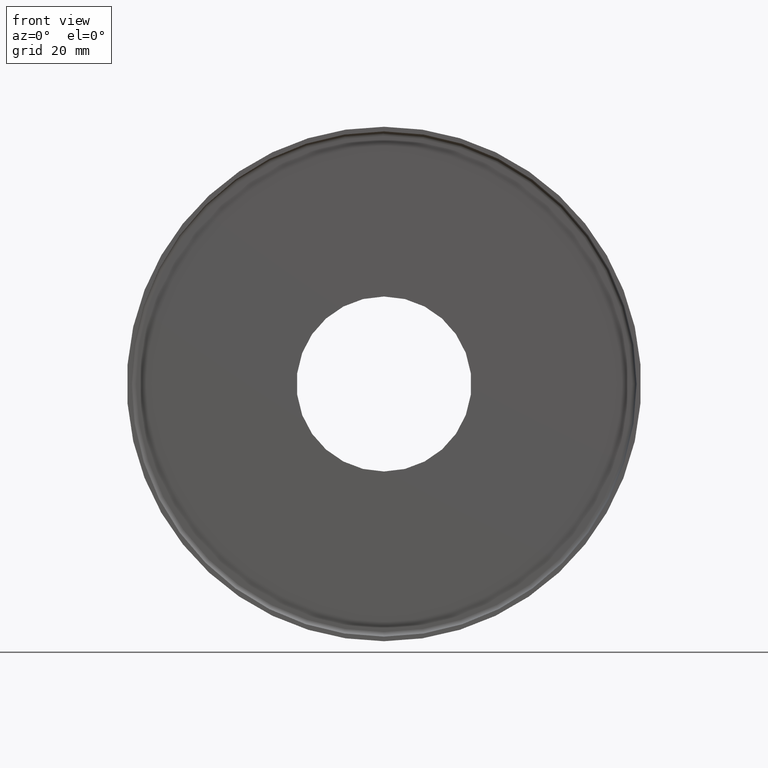
[diagram: clean part render]
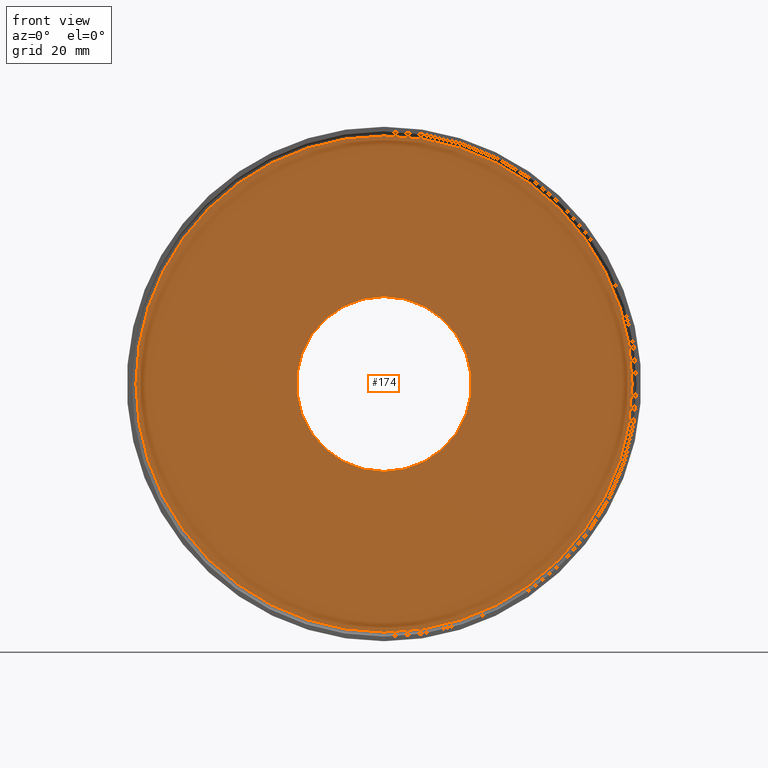
[diagram: same view with one face highlighted and labeled with its STEP entity id]
A machine part, front view. The second image highlights one B-rep face of the part: STEP entity #174.
In plain terms, the highlighted planar face has unit normal (0, 1, 0).
Its self-contained STEP definition (entity closure, byte-faithful):
#10 = DIRECTION ( 'NONE',  ( 0.0000000000000000000, 1.000000000000000000, 0.0000000000000000000 ) ) ;
#28 = CARTESIAN_POINT ( 'NONE',  ( 0.0000000000000000000, 17.39999999999999900, 0.0000000000000000000 ) ) ;
#42 = DIRECTION ( 'NONE',  ( 0.0000000000000000000, -0.0000000000000000000, 1.000000000000000000 ) ) ;
#49 = CIRCLE ( 'NONE', #271, 19.05000000000000100 ) ;
#56 = AXIS2_PLACEMENT_3D ( 'NONE', #125, #10, #42 ) ;
#58 = ORIENTED_EDGE ( 'NONE', *, *, #236, .F. ) ;
#67 = VERTEX_POINT ( 'NONE', #394 ) ;
#68 = EDGE_CURVE ( 'NONE', #224, #273, #324, .T. ) ;
#69 = CARTESIAN_POINT ( 'NONE',  ( 6.674325055353075800E-015, 17.39999999999999900, -54.00000000000000700 ) ) ;
#71 = DIRECTION ( 'NONE',  ( 0.0000000000000000000, 1.000000000000000000, 0.0000000000000000000 ) ) ;
#76 = FACE_OUTER_BOUND ( 'NONE', #298, .T. ) ;
#106 = DIRECTION ( 'NONE',  ( 0.0000000000000000000, 0.0000000000000000000, 1.000000000000000000 ) ) ;
#111 = ORIENTED_EDGE ( 'NONE', *, *, #312, .T. ) ;
#115 = AXIS2_PLACEMENT_3D ( 'NONE', #28, #242, #344 ) ;
#124 = CARTESIAN_POINT ( 'NONE',  ( 0.0000000000000000000, 17.39999999999999900, 0.0000000000000000000 ) ) ;
#125 = CARTESIAN_POINT ( 'NONE',  ( 0.0000000000000000000, 17.39999999999999900, 0.0000000000000000000 ) ) ;
#134 = ORIENTED_EDGE ( 'NONE', *, *, #193, .T. ) ;
#135 = DIRECTION ( 'NONE',  ( 0.0000000000000000000, 1.000000000000000000, 0.0000000000000000000 ) ) ;
#138 = EDGE_LOOP ( 'NONE', ( #134, #111 ) ) ;
#144 = FACE_BOUND ( 'NONE', #138, .T. ) ;
#158 = DIRECTION ( 'NONE',  ( 0.0000000000000000000, 0.0000000000000000000, 1.000000000000000000 ) ) ;
#174 = ADVANCED_FACE ( 'NONE', ( #144, #76 ), #378, .F. ) ;
#188 = DIRECTION ( 'NONE',  ( 0.0000000000000000000, 0.0000000000000000000, 1.000000000000000000 ) ) ;
#193 = EDGE_CURVE ( 'NONE', #285, #67, #49, .T. ) ;
#216 = AXIS2_PLACEMENT_3D ( 'NONE', #124, #249, #188 ) ;
#218 = ORIENTED_EDGE ( 'NONE', *, *, #68, .F. ) ;
#224 = VERTEX_POINT ( 'NONE', #296 ) ;
#236 = EDGE_CURVE ( 'NONE', #273, #224, #269, .T. ) ;
#242 = DIRECTION ( 'NONE',  ( 0.0000000000000000000, 1.000000000000000000, 0.0000000000000000000 ) ) ;
#249 = DIRECTION ( 'NONE',  ( 0.0000000000000000000, 1.000000000000000000, 0.0000000000000000000 ) ) ;
#262 = CARTESIAN_POINT ( 'NONE',  ( 0.0000000000000000000, 17.39999999999999900, 0.0000000000000000000 ) ) ;
#269 = CIRCLE ( 'NONE', #370, 54.00000000000000700 ) ;
#271 = AXIS2_PLACEMENT_3D ( 'NONE', #355, #135, #158 ) ;
#273 = VERTEX_POINT ( 'NONE', #69 ) ;
#285 = VERTEX_POINT ( 'NONE', #384 ) ;
#296 = CARTESIAN_POINT ( 'NONE',  ( 0.0000000000000000000, 17.39999999999999900, 54.00000000000000700 ) ) ;
#298 = EDGE_LOOP ( 'NONE', ( #218, #58 ) ) ;
#308 = CIRCLE ( 'NONE', #216, 19.05000000000000100 ) ;
#312 = EDGE_CURVE ( 'NONE', #67, #285, #308, .T. ) ;
#324 = CIRCLE ( 'NONE', #115, 54.00000000000000700 ) ;
#344 = DIRECTION ( 'NONE',  ( 0.0000000000000000000, 0.0000000000000000000, 1.000000000000000000 ) ) ;
#355 = CARTESIAN_POINT ( 'NONE',  ( 0.0000000000000000000, 17.39999999999999900, 0.0000000000000000000 ) ) ;
#370 = AXIS2_PLACEMENT_3D ( 'NONE', #262, #71, #106 ) ;
#378 = PLANE ( 'NONE',  #56 ) ;
#384 = CARTESIAN_POINT ( 'NONE',  ( 0.0000000000000000000, 17.39999999999999900, 19.05000000000000100 ) ) ;
#394 = CARTESIAN_POINT ( 'NONE',  ( 2.332952152375708000E-015, 17.39999999999999900, -19.05000000000000100 ) ) ;